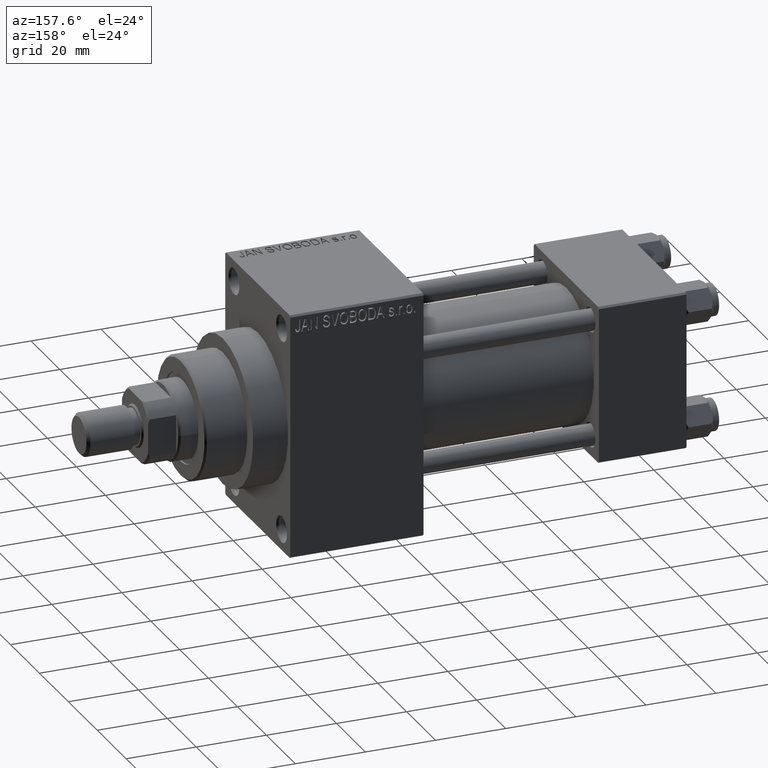
[diagram: clean part render]
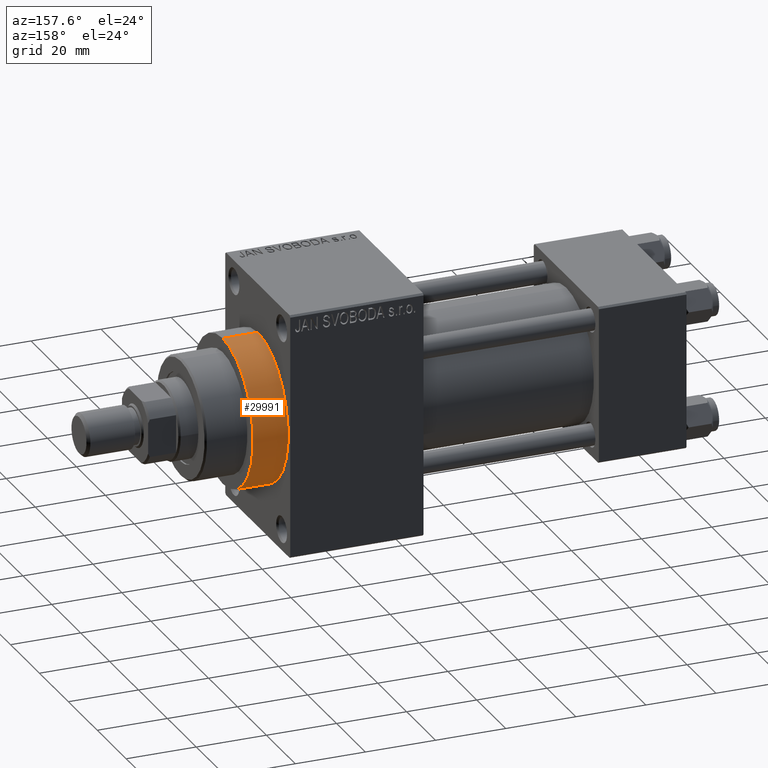
[diagram: same view with one face highlighted and labeled with its STEP entity id]
A machine part, auxiliary view. The second image highlights one B-rep face of the part: STEP entity #29991.
In plain terms, the highlighted cylindrical surface (partial cylindrical patch) has radius 21 mm, axis along (-1, -0, -0).
Its self-contained STEP definition (entity closure, byte-faithful):
#288 = VERTEX_POINT ( 'NONE', #31113 ) ;
#313 = VECTOR ( 'NONE', #27958, 1000.000000000000000 ) ;
#747 = EDGE_LOOP ( 'NONE', ( #1517, #3941, #9729, #43032 ) ) ;
#928 = AXIS2_PLACEMENT_3D ( 'NONE', #43352, #39258, #3140 ) ;
#1352 = CARTESIAN_POINT ( 'NONE',  ( 113.0000000000000142, 0.000000000000000000, 21.00000000000000000 ) ) ;
#1517 = ORIENTED_EDGE ( 'NONE', *, *, #45562, .F. ) ;
#2635 = AXIS2_PLACEMENT_3D ( 'NONE', #28390, #38992, #10098 ) ;
#3140 = DIRECTION ( 'NONE',  ( 0.000000000000000000, 0.000000000000000000, -1.000000000000000000 ) ) ;
#3519 = VERTEX_POINT ( 'NONE', #45458 ) ;
#3941 = ORIENTED_EDGE ( 'NONE', *, *, #45374, .T. ) ;
#6762 = DIRECTION ( 'NONE',  ( 0.000000000000000000, 0.000000000000000000, 1.000000000000000000 ) ) ;
#8006 = VECTOR ( 'NONE', #26264, 1000.000000000000000 ) ;
#9729 = ORIENTED_EDGE ( 'NONE', *, *, #36475, .T. ) ;
#10098 = DIRECTION ( 'NONE',  ( 0.000000000000000000, 0.000000000000000000, -1.000000000000000000 ) ) ;
#16895 = LINE ( 'NONE', #46253, #313 ) ;
#17250 = CIRCLE ( 'NONE', #2635, 21.00000000000000000 ) ;
#19996 = VERTEX_POINT ( 'NONE', #1352 ) ;
#21679 = CARTESIAN_POINT ( 'NONE',  ( 123.0000000000000142, 0.000000000000000000, 0.000000000000000000 ) ) ;
#23032 = AXIS2_PLACEMENT_3D ( 'NONE', #21679, #39731, #6762 ) ;
#23159 = FACE_OUTER_BOUND ( 'NONE', #747, .T. ) ;
#26264 = DIRECTION ( 'NONE',  ( -1.000000000000000000, -0.000000000000000000, -0.000000000000000000 ) ) ;
#27958 = DIRECTION ( 'NONE',  ( -1.000000000000000000, -0.000000000000000000, -0.000000000000000000 ) ) ;
#28181 = CYLINDRICAL_SURFACE ( 'NONE', #23032, 21.00000000000000000 ) ;
#28390 = CARTESIAN_POINT ( 'NONE',  ( 123.0000000000000142, 0.000000000000000000, 0.000000000000000000 ) ) ;
#29881 = LINE ( 'NONE', #44806, #8006 ) ;
#29991 = ADVANCED_FACE ( 'NONE', ( #23159 ), #28181, .T. ) ;
#31113 = CARTESIAN_POINT ( 'NONE',  ( 113.0000000000000142, 2.571758278209441661E-15, -21.00000000000000000 ) ) ;
#35472 = CARTESIAN_POINT ( 'NONE',  ( 123.0000000000000142, 2.571758278209441661E-15, -21.00000000000000000 ) ) ;
#36475 = EDGE_CURVE ( 'NONE', #288, #19996, #44748, .T. ) ;
#38992 = DIRECTION ( 'NONE',  ( 1.000000000000000000, 0.000000000000000000, 0.000000000000000000 ) ) ;
#39258 = DIRECTION ( 'NONE',  ( 1.000000000000000000, 0.000000000000000000, 0.000000000000000000 ) ) ;
#39731 = DIRECTION ( 'NONE',  ( -1.000000000000000000, -0.000000000000000000, -0.000000000000000000 ) ) ;
#43032 = ORIENTED_EDGE ( 'NONE', *, *, #44351, .F. ) ;
#43091 = VERTEX_POINT ( 'NONE', #35472 ) ;
#43352 = CARTESIAN_POINT ( 'NONE',  ( 113.0000000000000142, 0.000000000000000000, 0.000000000000000000 ) ) ;
#44351 = EDGE_CURVE ( 'NONE', #3519, #19996, #16895, .T. ) ;
#44748 = CIRCLE ( 'NONE', #928, 21.00000000000000000 ) ;
#44806 = CARTESIAN_POINT ( 'NONE',  ( 123.0000000000000142, 2.571758278209441661E-15, -21.00000000000000000 ) ) ;
#45374 = EDGE_CURVE ( 'NONE', #43091, #288, #29881, .T. ) ;
#45458 = CARTESIAN_POINT ( 'NONE',  ( 123.0000000000000142, 0.000000000000000000, 21.00000000000000000 ) ) ;
#45562 = EDGE_CURVE ( 'NONE', #43091, #3519, #17250, .T. ) ;
#46253 = CARTESIAN_POINT ( 'NONE',  ( 123.0000000000000142, 0.000000000000000000, 21.00000000000000000 ) ) ;